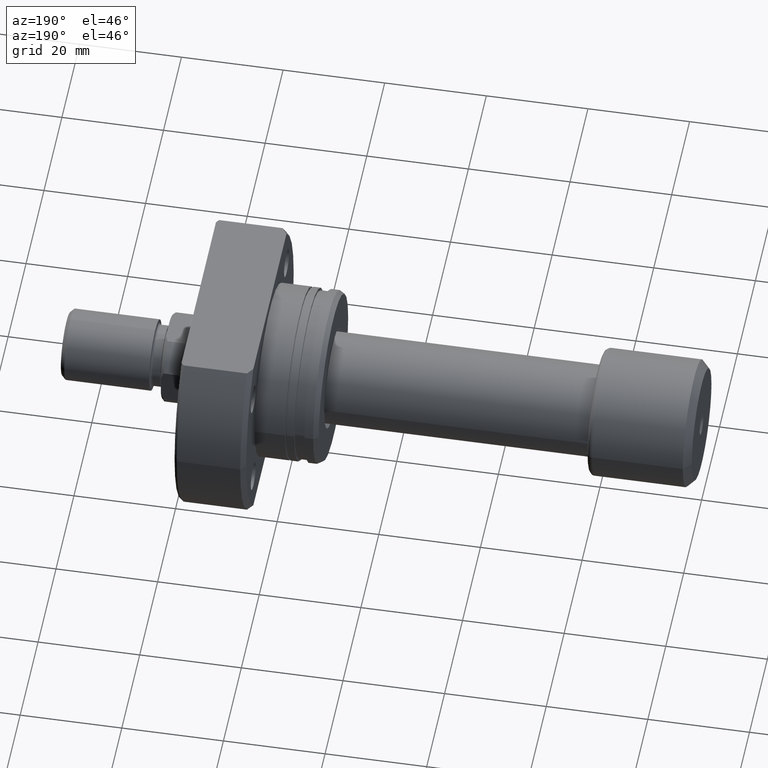
[diagram: clean part render]
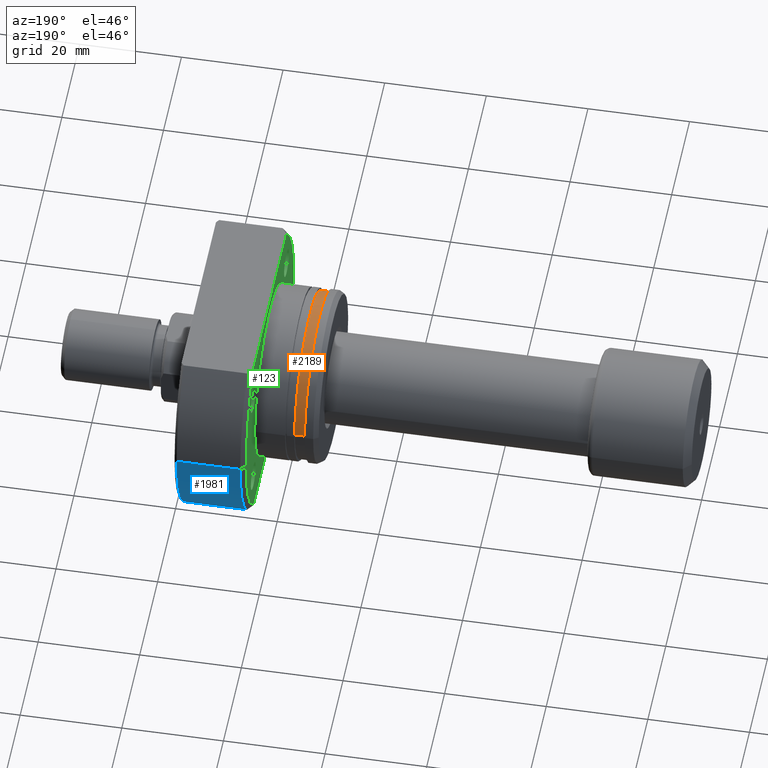
[diagram: same view with three faces highlighted in distinct colors, each labeled with its STEP entity id]
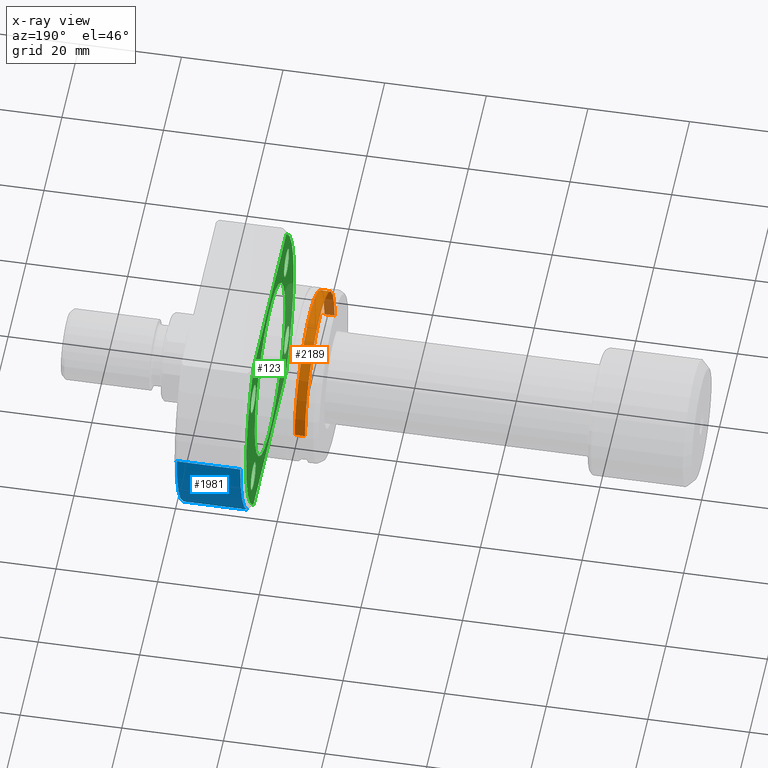
[diagram: x-ray of the same camera — body ghosted, the three highlighted faces saturated]
A machine part, auxiliary view with three faces highlighted in distinct colors.
The next image is the same camera in x-ray (body ghosted, the three faces saturated) — at least one of them is partly hidden behind the body in this view.
Their STEP definitions:

[orange] entity #2189 — the highlighted cylindrical surface (partial cylindrical patch) has radius 16.5 mm, axis along (1, 0, 0).
#38 = DIRECTION ( 'NONE',  ( 1.000000000000000000, 9.242617352055502386E-18, -0.000000000000000000 ) ) ;
#54 = FACE_OUTER_BOUND ( 'NONE', #1479, .T. ) ;
#65 = DIRECTION ( 'NONE',  ( 1.000000000000000000, 9.242617352055502386E-18, -0.000000000000000000 ) ) ;
#465 = ORIENTED_EDGE ( 'NONE', *, *, #2885, .F. ) ;
#503 = AXIS2_PLACEMENT_3D ( 'NONE', #3615, #3300, #3320 ) ;
#677 = DIRECTION ( 'NONE',  ( 0.000000000000000000, 1.000000000000000000, 0.000000000000000000 ) ) ;
#987 = ORIENTED_EDGE ( 'NONE', *, *, #3270, .F. ) ;
#1112 = ORIENTED_EDGE ( 'NONE', *, *, #1540, .T. ) ;
#1201 = CARTESIAN_POINT ( 'NONE',  ( 26.50000000000000711, 2.449293598294708880E-16, 0.000000000000000000 ) ) ;
#1414 = VECTOR ( 'NONE', #2813, 1000.000000000000000 ) ;
#1479 = EDGE_LOOP ( 'NONE', ( #2688, #1112, #465, #987 ) ) ;
#1518 = AXIS2_PLACEMENT_3D ( 'NONE', #3225, #65, #677 ) ;
#1540 = EDGE_CURVE ( 'NONE', #2166, #2881, #2555, .T. ) ;
#1761 = DIRECTION ( 'NONE',  ( 0.000000000000000000, 1.000000000000000000, 0.000000000000000000 ) ) ;
#1873 = VERTEX_POINT ( 'NONE', #3588 ) ;
#2100 = CIRCLE ( 'NONE', #503, 16.49999999999999645 ) ;
#2154 = AXIS2_PLACEMENT_3D ( 'NONE', #1201, #38, #1761 ) ;
#2166 = VERTEX_POINT ( 'NONE', #3635 ) ;
#2189 = ADVANCED_FACE ( 'NONE', ( #54 ), #3159, .T. ) ;
#2251 = CARTESIAN_POINT ( 'NONE',  ( 26.50000000000000711, 16.49999999999999289, 0.000000000000000000 ) ) ;
#2446 = CARTESIAN_POINT ( 'NONE',  ( 4.699999999998548894, -16.49999999999999645, 2.020667218593132706E-15 ) ) ;
#2555 = LINE ( 'NONE', #3135, #1414 ) ;
#2672 = VERTEX_POINT ( 'NONE', #3028 ) ;
#2688 = ORIENTED_EDGE ( 'NONE', *, *, #3090, .T. ) ;
#2813 = DIRECTION ( 'NONE',  ( 1.000000000000000000, 9.242617352055502386E-18, -0.000000000000000000 ) ) ;
#2828 = CIRCLE ( 'NONE', #1518, 16.49999999999999289 ) ;
#2881 = VERTEX_POINT ( 'NONE', #2446 ) ;
#2885 = EDGE_CURVE ( 'NONE', #1873, #2881, #2100, .T. ) ;
#3028 = CARTESIAN_POINT ( 'NONE',  ( 2.699999999999782574, 16.49999999999999289, 0.000000000000000000 ) ) ;
#3090 = EDGE_CURVE ( 'NONE', #2672, #2166, #2828, .T. ) ;
#3128 = VECTOR ( 'NONE', #3632, 1000.000000000000000 ) ;
#3135 = CARTESIAN_POINT ( 'NONE',  ( 26.50000000000000711, -16.49999999999999289, 2.020667218593132311E-15 ) ) ;
#3159 = CYLINDRICAL_SURFACE ( 'NONE', #2154, 16.49999999999999289 ) ;
#3225 = CARTESIAN_POINT ( 'NONE',  ( 2.699999999999782574, 2.495506685054785763E-17, 0.000000000000000000 ) ) ;
#3270 = EDGE_CURVE ( 'NONE', #2672, #1873, #3673, .T. ) ;
#3300 = DIRECTION ( 'NONE',  ( 1.000000000000000000, 9.242617352055502386E-18, -0.000000000000000000 ) ) ;
#3320 = DIRECTION ( 'NONE',  ( 0.000000000000000000, 1.000000000000000000, 0.000000000000000000 ) ) ;
#3588 = CARTESIAN_POINT ( 'NONE',  ( 4.699999999998548894, 16.49999999999999645, 0.000000000000000000 ) ) ;
#3615 = CARTESIAN_POINT ( 'NONE',  ( 4.699999999998548894, 4.344030155464744241E-17, 0.000000000000000000 ) ) ;
#3632 = DIRECTION ( 'NONE',  ( 1.000000000000000000, 9.242617352055502386E-18, -0.000000000000000000 ) ) ;
#3635 = CARTESIAN_POINT ( 'NONE',  ( 2.699999999999782574, -16.49999999999999289, 2.020667218593132311E-15 ) ) ;
#3673 = LINE ( 'NONE', #2251, #3128 ) ;

[blue] entity #1981 — the highlighted cylindrical surface (partial cylindrical patch) has radius 27.5 mm, axis along (1, 0, 0).
#50 = EDGE_CURVE ( 'NONE', #944, #1837, #3271, .T. ) ;
#211 = CARTESIAN_POINT ( 'NONE',  ( 26.50000000000000711, 2.449293598294708880E-16, 0.000000000000000000 ) ) ;
#361 = EDGE_CURVE ( 'NONE', #1837, #1119, #2084, .T. ) ;
#561 = ORIENTED_EDGE ( 'NONE', *, *, #50, .F. ) ;
#683 = VECTOR ( 'NONE', #2324, 1000.000000000000000 ) ;
#944 = VERTEX_POINT ( 'NONE', #1835 ) ;
#1013 = CYLINDRICAL_SURFACE ( 'NONE', #1387, 27.49999999999991473 ) ;
#1053 = CARTESIAN_POINT ( 'NONE',  ( 26.00000000000007461, 19.88089535207093306, -18.99999999999999645 ) ) ;
#1119 = VERTEX_POINT ( 'NONE', #2585 ) ;
#1124 = VERTEX_POINT ( 'NONE', #1765 ) ;
#1258 = EDGE_LOOP ( 'NONE', ( #1474, #2982, #2984, #561 ) ) ;
#1371 = EDGE_CURVE ( 'NONE', #944, #1124, #3391, .T. ) ;
#1387 = AXIS2_PLACEMENT_3D ( 'NONE', #211, #3009, #1591 ) ;
#1474 = ORIENTED_EDGE ( 'NONE', *, *, #1371, .T. ) ;
#1512 = DIRECTION ( 'NONE',  ( 0.000000000000000000, 1.000000000000000000, 0.000000000000000000 ) ) ;
#1591 = DIRECTION ( 'NONE',  ( 0.000000000000000000, 1.000000000000000000, 0.000000000000000000 ) ) ;
#1628 = VECTOR ( 'NONE', #2757, 1000.000000000000000 ) ;
#1765 = CARTESIAN_POINT ( 'NONE',  ( 13.49999999999999112, 27.49999999999991473, 0.000000000000000000 ) ) ;
#1835 = CARTESIAN_POINT ( 'NONE',  ( 13.49999999999998757, 19.88089535207129543, -18.99999999999999645 ) ) ;
#1837 = VERTEX_POINT ( 'NONE', #1053 ) ;
#1854 = AXIS2_PLACEMENT_3D ( 'NONE', #2135, #3004, #1512 ) ;
#1981 = ADVANCED_FACE ( 'NONE', ( #3307 ), #1013, .T. ) ;
#2084 = CIRCLE ( 'NONE', #1854, 27.49999999999991473 ) ;
#2135 = CARTESIAN_POINT ( 'NONE',  ( 26.00000000000008882, 2.403080511534438786E-16, 0.000000000000000000 ) ) ;
#2171 = CARTESIAN_POINT ( 'NONE',  ( 26.50000000000000711, 27.49999999999991473, 0.000000000000000000 ) ) ;
#2317 = AXIS2_PLACEMENT_3D ( 'NONE', #2975, #2694, #3660 ) ;
#2324 = DIRECTION ( 'NONE',  ( 1.000000000000000000, -2.886466111666351885E-14, -0.000000000000000000 ) ) ;
#2402 = CARTESIAN_POINT ( 'NONE',  ( -2.151057110211240797E-13, 19.88089535207168268, -18.99999999999999645 ) ) ;
#2585 = CARTESIAN_POINT ( 'NONE',  ( 26.00000000000008882, 27.49999999999991473, 0.000000000000000000 ) ) ;
#2694 = DIRECTION ( 'NONE',  ( 1.000000000000000000, 9.242617352055502386E-18, -0.000000000000000000 ) ) ;
#2757 = DIRECTION ( 'NONE',  ( 1.000000000000000000, 9.242617352055502386E-18, -0.000000000000000000 ) ) ;
#2778 = LINE ( 'NONE', #2171, #1628 ) ;
#2843 = EDGE_CURVE ( 'NONE', #1124, #1119, #2778, .T. ) ;
#2975 = CARTESIAN_POINT ( 'NONE',  ( 13.49999999999999112, 1.247753342527491952E-16, 0.000000000000000000 ) ) ;
#2982 = ORIENTED_EDGE ( 'NONE', *, *, #2843, .T. ) ;
#2984 = ORIENTED_EDGE ( 'NONE', *, *, #361, .F. ) ;
#3004 = DIRECTION ( 'NONE',  ( 1.000000000000000000, 9.242617352055502386E-18, -0.000000000000000000 ) ) ;
#3009 = DIRECTION ( 'NONE',  ( 1.000000000000000000, 9.242617352055502386E-18, -0.000000000000000000 ) ) ;
#3271 = LINE ( 'NONE', #2402, #683 ) ;
#3307 = FACE_OUTER_BOUND ( 'NONE', #1258, .T. ) ;
#3391 = CIRCLE ( 'NONE', #2317, 27.49999999999991473 ) ;
#3660 = DIRECTION ( 'NONE',  ( 0.000000000000000000, 1.000000000000000000, 0.000000000000000000 ) ) ;

[green] entity #123 — the highlighted planar face has unit normal (1, 0, 0).
#10 = AXIS2_PLACEMENT_3D ( 'NONE', #1945, #2307, #855 ) ;
#37 = VERTEX_POINT ( 'NONE', #712 ) ;
#86 = AXIS2_PLACEMENT_3D ( 'NONE', #2128, #3610, #423 ) ;
#111 = ORIENTED_EDGE ( 'NONE', *, *, #2861, .F. ) ;
#119 = DIRECTION ( 'NONE',  ( 1.000000000000000000, 9.242617352055502386E-18, -0.000000000000000000 ) ) ;
#123 = ADVANCED_FACE ( 'NONE', ( #1343, #158, #728, #2450, #1360, #2496 ), #2191, .F. ) ;
#133 = CIRCLE ( 'NONE', #3645, 2.749999999999999112 ) ;
#158 = FACE_BOUND ( 'NONE', #2383, .T. ) ;
#243 = ORIENTED_EDGE ( 'NONE', *, *, #1778, .F. ) ;
#253 = CIRCLE ( 'NONE', #10, 2.749999999999999112 ) ;
#267 = AXIS2_PLACEMENT_3D ( 'NONE', #2992, #1304, #2753 ) ;
#280 = VERTEX_POINT ( 'NONE', #847 ) ;
#372 = CARTESIAN_POINT ( 'NONE',  ( 12.50000000000000355, -15.85000000000036380, -10.75000000000000000 ) ) ;
#423 = DIRECTION ( 'NONE',  ( 0.000000000000000000, 1.000000000000000000, 0.000000000000000000 ) ) ;
#448 = VECTOR ( 'NONE', #1584, 1000.000000000000000 ) ;
#457 = LINE ( 'NONE', #3000, #448 ) ;
#507 = CIRCLE ( 'NONE', #1105, 2.749999999999999112 ) ;
#510 = ORIENTED_EDGE ( 'NONE', *, *, #1310, .T. ) ;
#535 = EDGE_LOOP ( 'NONE', ( #935, #911 ) ) ;
#537 = EDGE_CURVE ( 'NONE', #3130, #37, #253, .T. ) ;
#565 = CIRCLE ( 'NONE', #1678, 16.99999999999999645 ) ;
#603 = DIRECTION ( 'NONE',  ( 1.000000000000000000, 9.242617352055502386E-18, -0.000000000000000000 ) ) ;
#659 = EDGE_CURVE ( 'NONE', #37, #3130, #1030, .T. ) ;
#664 = AXIS2_PLACEMENT_3D ( 'NONE', #1015, #1517, #1534 ) ;
#709 = VERTEX_POINT ( 'NONE', #3290 ) ;
#712 = CARTESIAN_POINT ( 'NONE',  ( 12.50000000000000355, 21.34999999999963904, -10.75000000000000000 ) ) ;
#728 = FACE_BOUND ( 'NONE', #535, .T. ) ;
#736 = VERTEX_POINT ( 'NONE', #1001 ) ;
#747 = EDGE_LOOP ( 'NONE', ( #111, #243, #1524, #1434, #2061 ) ) ;
#756 = AXIS2_PLACEMENT_3D ( 'NONE', #824, #2805, #1149 ) ;
#760 = CARTESIAN_POINT ( 'NONE',  ( 12.50000000000000178, -16.99999999999999645, 2.081899558550499885E-15 ) ) ;
#787 = EDGE_CURVE ( 'NONE', #736, #3535, #133, .T. ) ;
#790 = ORIENTED_EDGE ( 'NONE', *, *, #2960, .T. ) ;
#818 = ORIENTED_EDGE ( 'NONE', *, *, #787, .T. ) ;
#824 = CARTESIAN_POINT ( 'NONE',  ( 12.50000000000000355, 1.155327169006938207E-16, 0.000000000000000000 ) ) ;
#847 = CARTESIAN_POINT ( 'NONE',  ( 12.50000000000000355, 18.47295320191106072, 19.00000000000001066 ) ) ;
#855 = DIRECTION ( 'NONE',  ( 0.000000000000000000, 1.000000000000000000, 0.000000000000000000 ) ) ;
#877 = DIRECTION ( 'NONE',  ( 0.000000000000000000, 1.000000000000000000, 0.000000000000000000 ) ) ;
#900 = CARTESIAN_POINT ( 'NONE',  ( 12.50000000000000355, -21.35000000000036025, -10.75000000000000000 ) ) ;
#911 = ORIENTED_EDGE ( 'NONE', *, *, #3189, .T. ) ;
#915 = ORIENTED_EDGE ( 'NONE', *, *, #2027, .T. ) ;
#935 = ORIENTED_EDGE ( 'NONE', *, *, #3682, .T. ) ;
#968 = CARTESIAN_POINT ( 'NONE',  ( 12.50000000000000355, 1.155327169006938207E-16, 0.000000000000000000 ) ) ;
#1001 = CARTESIAN_POINT ( 'NONE',  ( 12.50000000000000355, -21.35000000000036025, 10.75000000000000000 ) ) ;
#1012 = DIRECTION ( 'NONE',  ( -9.242617352055502386E-18, 1.000000000000000000, 0.000000000000000000 ) ) ;
#1014 = VERTEX_POINT ( 'NONE', #760 ) ;
#1015 = CARTESIAN_POINT ( 'NONE',  ( 12.50000000000000355, 18.59999999999964260, 10.75000000000000000 ) ) ;
#1030 = CIRCLE ( 'NONE', #1856, 2.749999999999999112 ) ;
#1043 = CIRCLE ( 'NONE', #86, 26.49999999999993250 ) ;
#1074 = DIRECTION ( 'NONE',  ( 0.000000000000000000, 1.000000000000000000, 0.000000000000000000 ) ) ;
#1105 = AXIS2_PLACEMENT_3D ( 'NONE', #3353, #1685, #1074 ) ;
#1149 = DIRECTION ( 'NONE',  ( 0.000000000000000000, 1.000000000000000000, 0.000000000000000000 ) ) ;
#1176 = CARTESIAN_POINT ( 'NONE',  ( 12.50000000000000355, 21.34999999999963904, 10.75000000000000000 ) ) ;
#1283 = CIRCLE ( 'NONE', #3060, 16.99999999999999645 ) ;
#1286 = VECTOR ( 'NONE', #2670, 1000.000000000000000 ) ;
#1304 = DIRECTION ( 'NONE',  ( 1.000000000000000000, 9.242617352055502386E-18, -0.000000000000000000 ) ) ;
#1310 = EDGE_CURVE ( 'NONE', #2119, #3629, #1669, .T. ) ;
#1339 = CIRCLE ( 'NONE', #267, 2.749999999999999112 ) ;
#1343 = FACE_BOUND ( 'NONE', #3001, .T. ) ;
#1350 = AXIS2_PLACEMENT_3D ( 'NONE', #968, #1940, #2750 ) ;
#1360 = FACE_BOUND ( 'NONE', #2818, .T. ) ;
#1391 = CIRCLE ( 'NONE', #3056, 2.749999999999999112 ) ;
#1434 = ORIENTED_EDGE ( 'NONE', *, *, #3137, .T. ) ;
#1491 = CARTESIAN_POINT ( 'NONE',  ( 12.50000000000000355, -18.60000000000036380, 10.75000000000000000 ) ) ;
#1517 = DIRECTION ( 'NONE',  ( 1.000000000000000000, 9.242617352055502386E-18, -0.000000000000000000 ) ) ;
#1523 = CARTESIAN_POINT ( 'NONE',  ( 12.50000000000000355, -16.99999999999999645, -19.00000000000001066 ) ) ;
#1524 = ORIENTED_EDGE ( 'NONE', *, *, #2509, .F. ) ;
#1534 = DIRECTION ( 'NONE',  ( 0.000000000000000000, 1.000000000000000000, 0.000000000000000000 ) ) ;
#1539 = DIRECTION ( 'NONE',  ( 0.000000000000000000, 1.000000000000000000, 0.000000000000000000 ) ) ;
#1579 = ORIENTED_EDGE ( 'NONE', *, *, #659, .T. ) ;
#1584 = DIRECTION ( 'NONE',  ( 9.242617352055502386E-18, -1.000000000000000000, 0.000000000000000000 ) ) ;
#1669 = CIRCLE ( 'NONE', #664, 2.749999999999999112 ) ;
#1671 = CARTESIAN_POINT ( 'NONE',  ( 12.50000000000000355, 15.84999999999964260, 10.75000000000000000 ) ) ;
#1676 = CARTESIAN_POINT ( 'NONE',  ( 12.50000000000000355, -18.47295320191106072, -19.00000000000001066 ) ) ;
#1678 = AXIS2_PLACEMENT_3D ( 'NONE', #2987, #1894, #2747 ) ;
#1685 = DIRECTION ( 'NONE',  ( 1.000000000000000000, 9.242617352055502386E-18, -0.000000000000000000 ) ) ;
#1730 = AXIS2_PLACEMENT_3D ( 'NONE', #1860, #3008, #1012 ) ;
#1778 = EDGE_CURVE ( 'NONE', #2088, #280, #2926, .T. ) ;
#1855 = CARTESIAN_POINT ( 'NONE',  ( 12.50000000000000355, 18.47295320191106072, -19.00000000000001066 ) ) ;
#1856 = AXIS2_PLACEMENT_3D ( 'NONE', #2054, #119, #2648 ) ;
#1860 = CARTESIAN_POINT ( 'NONE',  ( 12.50000000000000355, -16.99999999999999645, 0.000000000000000000 ) ) ;
#1880 = CARTESIAN_POINT ( 'NONE',  ( 12.50000000000000355, -18.60000000000036380, 10.75000000000000000 ) ) ;
#1894 = DIRECTION ( 'NONE',  ( 1.000000000000000000, 9.242617352055502386E-18, -0.000000000000000000 ) ) ;
#1901 = VERTEX_POINT ( 'NONE', #1676 ) ;
#1940 = DIRECTION ( 'NONE',  ( 1.000000000000000000, 9.242617352055502386E-18, -0.000000000000000000 ) ) ;
#1945 = CARTESIAN_POINT ( 'NONE',  ( 12.50000000000000355, 18.59999999999964260, -10.75000000000000000 ) ) ;
#2008 = CARTESIAN_POINT ( 'NONE',  ( 12.50000000000000355, 26.49999999999993250, 0.000000000000000000 ) ) ;
#2027 = EDGE_CURVE ( 'NONE', #709, #1014, #565, .T. ) ;
#2040 = CARTESIAN_POINT ( 'NONE',  ( 12.50000000000000355, -18.47295320191106072, 19.00000000000001066 ) ) ;
#2054 = CARTESIAN_POINT ( 'NONE',  ( 12.50000000000000355, 18.59999999999964260, -10.75000000000000000 ) ) ;
#2061 = ORIENTED_EDGE ( 'NONE', *, *, #3234, .F. ) ;
#2087 = LINE ( 'NONE', #1523, #1286 ) ;
#2088 = VERTEX_POINT ( 'NONE', #2008 ) ;
#2119 = VERTEX_POINT ( 'NONE', #1671 ) ;
#2128 = CARTESIAN_POINT ( 'NONE',  ( 12.50000000000000355, 1.155327169006938207E-16, 0.000000000000000000 ) ) ;
#2191 = PLANE ( 'NONE',  #1730 ) ;
#2234 = EDGE_CURVE ( 'NONE', #3535, #736, #1391, .T. ) ;
#2307 = DIRECTION ( 'NONE',  ( 1.000000000000000000, 9.242617352055502386E-18, -0.000000000000000000 ) ) ;
#2321 = ORIENTED_EDGE ( 'NONE', *, *, #2234, .T. ) ;
#2383 = EDGE_LOOP ( 'NONE', ( #2321, #818 ) ) ;
#2398 = DIRECTION ( 'NONE',  ( 0.000000000000000000, 1.000000000000000000, 0.000000000000000000 ) ) ;
#2407 = DIRECTION ( 'NONE',  ( 1.000000000000000000, 9.242617352055502386E-18, -0.000000000000000000 ) ) ;
#2426 = AXIS2_PLACEMENT_3D ( 'NONE', #3275, #2407, #1539 ) ;
#2450 = FACE_BOUND ( 'NONE', #3152, .T. ) ;
#2496 = FACE_OUTER_BOUND ( 'NONE', #747, .T. ) ;
#2509 = EDGE_CURVE ( 'NONE', #2856, #2088, #2999, .T. ) ;
#2532 = CARTESIAN_POINT ( 'NONE',  ( 12.50000000000000178, 1.155327169006937960E-16, 0.000000000000000000 ) ) ;
#2547 = EDGE_CURVE ( 'NONE', #1014, #709, #1283, .T. ) ;
#2648 = DIRECTION ( 'NONE',  ( 0.000000000000000000, 1.000000000000000000, 0.000000000000000000 ) ) ;
#2670 = DIRECTION ( 'NONE',  ( 9.242617352055502386E-18, -1.000000000000000000, 0.000000000000000000 ) ) ;
#2747 = DIRECTION ( 'NONE',  ( 0.000000000000000000, 1.000000000000000000, 0.000000000000000000 ) ) ;
#2750 = DIRECTION ( 'NONE',  ( 0.000000000000000000, 1.000000000000000000, 0.000000000000000000 ) ) ;
#2753 = DIRECTION ( 'NONE',  ( 0.000000000000000000, 1.000000000000000000, 0.000000000000000000 ) ) ;
#2805 = DIRECTION ( 'NONE',  ( 1.000000000000000000, 9.242617352055502386E-18, -0.000000000000000000 ) ) ;
#2818 = EDGE_LOOP ( 'NONE', ( #915, #2952 ) ) ;
#2856 = VERTEX_POINT ( 'NONE', #1855 ) ;
#2861 = EDGE_CURVE ( 'NONE', #280, #3438, #457, .T. ) ;
#2898 = CARTESIAN_POINT ( 'NONE',  ( 12.50000000000000355, -15.85000000000036380, 10.75000000000000000 ) ) ;
#2926 = CIRCLE ( 'NONE', #1350, 26.49999999999993250 ) ;
#2952 = ORIENTED_EDGE ( 'NONE', *, *, #2547, .T. ) ;
#2960 = EDGE_CURVE ( 'NONE', #3629, #2119, #507, .T. ) ;
#2987 = CARTESIAN_POINT ( 'NONE',  ( 12.50000000000000178, 1.155327169006937960E-16, 0.000000000000000000 ) ) ;
#2992 = CARTESIAN_POINT ( 'NONE',  ( 12.50000000000000355, -18.60000000000036380, -10.75000000000000000 ) ) ;
#2999 = CIRCLE ( 'NONE', #756, 26.49999999999993250 ) ;
#3000 = CARTESIAN_POINT ( 'NONE',  ( 12.50000000000000355, -16.99999999999999645, 19.00000000000001066 ) ) ;
#3001 = EDGE_LOOP ( 'NONE', ( #790, #510 ) ) ;
#3003 = CIRCLE ( 'NONE', #2426, 2.749999999999999112 ) ;
#3008 = DIRECTION ( 'NONE',  ( 1.000000000000000000, 9.242617352055502386E-18, -0.000000000000000000 ) ) ;
#3014 = DIRECTION ( 'NONE',  ( 0.000000000000000000, 1.000000000000000000, 0.000000000000000000 ) ) ;
#3056 = AXIS2_PLACEMENT_3D ( 'NONE', #1491, #603, #2398 ) ;
#3060 = AXIS2_PLACEMENT_3D ( 'NONE', #2532, #3104, #877 ) ;
#3104 = DIRECTION ( 'NONE',  ( 1.000000000000000000, 9.242617352055502386E-18, -0.000000000000000000 ) ) ;
#3130 = VERTEX_POINT ( 'NONE', #3526 ) ;
#3137 = EDGE_CURVE ( 'NONE', #2856, #1901, #2087, .T. ) ;
#3152 = EDGE_LOOP ( 'NONE', ( #1579, #3161 ) ) ;
#3161 = ORIENTED_EDGE ( 'NONE', *, *, #537, .T. ) ;
#3189 = EDGE_CURVE ( 'NONE', #3519, #3547, #1339, .T. ) ;
#3234 = EDGE_CURVE ( 'NONE', #3438, #1901, #1043, .T. ) ;
#3275 = CARTESIAN_POINT ( 'NONE',  ( 12.50000000000000355, -18.60000000000036380, -10.75000000000000000 ) ) ;
#3290 = CARTESIAN_POINT ( 'NONE',  ( 12.50000000000000178, 16.99999999999999645, 0.000000000000000000 ) ) ;
#3330 = DIRECTION ( 'NONE',  ( 1.000000000000000000, 9.242617352055502386E-18, -0.000000000000000000 ) ) ;
#3353 = CARTESIAN_POINT ( 'NONE',  ( 12.50000000000000355, 18.59999999999964260, 10.75000000000000000 ) ) ;
#3438 = VERTEX_POINT ( 'NONE', #2040 ) ;
#3519 = VERTEX_POINT ( 'NONE', #900 ) ;
#3526 = CARTESIAN_POINT ( 'NONE',  ( 12.50000000000000355, 15.84999999999964260, -10.75000000000000000 ) ) ;
#3535 = VERTEX_POINT ( 'NONE', #2898 ) ;
#3547 = VERTEX_POINT ( 'NONE', #372 ) ;
#3610 = DIRECTION ( 'NONE',  ( 1.000000000000000000, 9.242617352055502386E-18, -0.000000000000000000 ) ) ;
#3629 = VERTEX_POINT ( 'NONE', #1176 ) ;
#3645 = AXIS2_PLACEMENT_3D ( 'NONE', #1880, #3330, #3014 ) ;
#3682 = EDGE_CURVE ( 'NONE', #3547, #3519, #3003, .T. ) ;